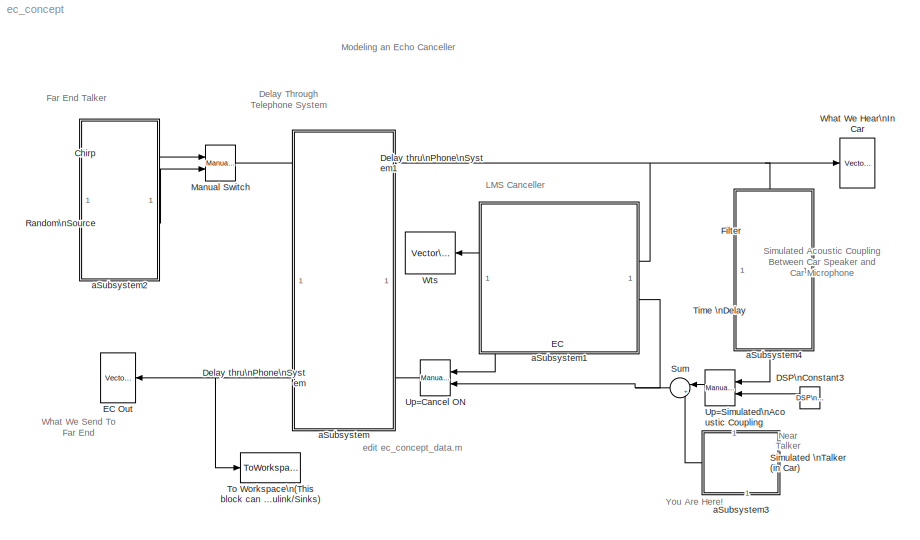
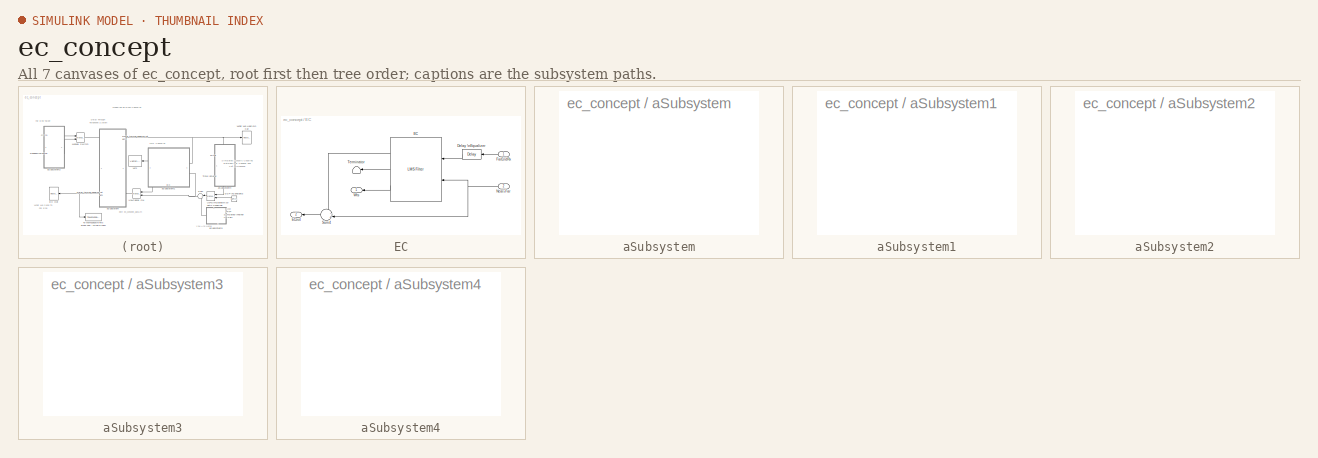
[diagram: thumbnail index - all 7 canvases of the model, root first then tree order]
MODEL ec_concept
KIND model
CONFIG PreLoadFcn = ec_data_concept;
CONFIG StartFcn = tic;
CONFIG StopFcn = toc;
BLOCK [Reference] Chirp  REF=dspsrcs4/Chirp
  Ports = [0, 1]
  SID = 1
  SourceBlock = dspsrcs4/Chirp
  SourceProductBaseCode = DS
  SourceProductName = DSP System Toolbox
  SourceType = Chirp
  Ts = 1/Fs
  Tsweep = pic_frame_size/Fs
  datatype = Single
  f0 = 100
  f1 = 4000
  mode = Unidirectional
  phase = 0
  spf = pic_frame_size
  sweep = Linear
  t1 = pic_frame_size/Fs
BLOCK [Reference] DSP\nConstant3  REF=dspsrcs4/DSP\nConstant
  FramebasedOutput = off
  FunctionWithSeparateData = off
  InterpretAs1D = off
  Ports = [0, 1]
  RTWMemSecDataConstants = Inherit from model
  RTWMemSecDataInternal = Inherit from model
  RTWMemSecDataParameters = Inherit from model
  RTWMemSecFuncExecute = Inherit from model
  RTWMemSecFuncInitTerm = Inherit from model
  SID = 2
  SampleMode = Discrete
  ShowPortLabels = FromPortIcon
  SourceBlock = dspsrcs4/DSP\nConstant
  SourceProductBaseCode = DS
  SourceProductName = DSP System Toolbox
  SourceType = DSP Constant
  SystemSampleTime = -1
  Ts = pic_frame_size/Fs
  Value = 0
  additionalParams = off
  allowOverrides = on
  continuousOutput = Sample-based
  dataType = single
  discreteOutput = Sample-based
  fracBitsMode = Best precision
  framePeriod = pic_frame_size/Fs
  isSigned = on
  numFracBits = 15
  sampTime = pic_frame_size/Fs
  udDataType = sfix(16)
  wordLen = 16
BLOCK [Reference] Delay thru\nPhone\nSystem  REF=dspsigops/Delay
  Ports = [1, 1]
  SID = 3
  SourceBlock = dspsigops/Delay
  SourceProductBaseCode = DS
  SourceProductName = DSP System Toolbox
  SourceType = Delay
  delay = 100
  dif_ic_for_ch = off
  dif_ic_for_dly = off
  dly_unit = Samples
  ic = 0
  ic_detail = off
  reset_popup = None
BLOCK [Reference] Delay thru\nPhone\nSystem1  REF=dspsigops/Delay
  Ports = [1, 1]
  SID = 4
  SourceBlock = dspsigops/Delay
  SourceProductBaseCode = DS
  SourceProductName = DSP System Toolbox
  SourceType = Delay
  delay = 100
  dif_ic_for_ch = off
  dif_ic_for_dly = off
  dly_unit = Samples
  ic = 0
  ic_detail = off
  reset_popup = None
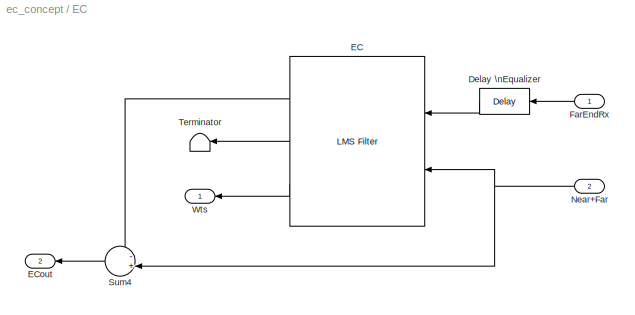
BLOCK [SubSystem] EC
  Ports = [2, 2]
  RequestExecContextInheritance = off
  SID = 5
BLOCK [Reference] EC Out  REF=dspsnks4/Vector\nScope
  AxisGrid = on
  AxisLegend = off
  AxisProperties = off
  AxisZoom = off
  DisplayProperties = off
  Domain = Time
  FigPos = [27 415 306 206]
  FrameNumber = on
  HorizSpan = 4
  InheritXIncr = on
  LineProperties = off
  Memory = off
  OpenScopeAtSimStart = on
  OpenScopeImmediately = off
  Ports = [1]
  SID = 14
  ScopeProperties = on
  ShowPortLabels = off
  SourceBlock = dspsnks4/Vector\nScope
  SourceProductBaseCode = DS
  SourceProductName = DSP System Toolbox
  SourceType = Vector Scope
  XIncr = 1
  XLabel = Time
  XLimit = Auto
  XMax = 1
  XMin = 0
  XRange = [0...Fs/2]
  XStart = 0
  XUnits = Hertz
  YLabel = Amplitude
  YMax = 0.550434925854206
  YMin = -0.526783668994904
  YUnits = dB
BLOCK [Reference] EC/Delay \nEqualizer  REF=dspsigops/Delay
  Ports = [1, 1]
  SID = 8
  SourceBlock = dspsigops/Delay
  SourceProductBaseCode = DS
  SourceProductName = DSP System Toolbox
  SourceType = Delay
  delay = spkr_to_mic_delay +sm_length/2 - 32/2
  dif_ic_for_ch = off
  dif_ic_for_dly = off
  dly_unit = Samples
  ic = 0
  ic_detail = off
  reset_popup = None
BLOCK [Reference] EC/EC  REF=dspadpt3/LMS Filter
  Adapt = off
  Algo = LMS
  L = 32
  LockScale = off
  Ports = [2, 3]
  SID = 9
  ShowPortLabels = off
  SourceBlock = dspadpt3/LMS Filter
  SourceProductBaseCode = DS
  SourceProductName = DSP System Toolbox
  SourceType = LMS Filter
  accum2FracLength = 30
  accum2Mode = User-defined
  accumFracLength = 20
  accumMode = Same as first input
  accumWordLength = 32
  addnparflag = off
  firstCoeffFracLength = 15
  firstCoeffMode = Same word length as first input
  firstCoeffWordLength = 16
  ic = 0
  leakage = 1
  memoryFracLength = 15
  memoryMode = Same as first input
  memoryWordLength = 16
  mu = 10/32768
  overflowMode = off
  prodOutput2FracLength = 15
  prodOutput2Mode = User-defined
  prodOutput3FracLength = 15
  prodOutput3Mode = User-defined
  prodOutput4FracLength = 15
  prodOutput4Mode = User-defined
  prodOutputFracLength = 20
  prodOutputMode = Same as first input
  prodOutputWordLength = 16
  quotientFracLength = 20
  quotientMode = User-defined
  resetflag = None
  roundingMode = Nearest
  secondCoeffFracLength = 14
  secondCoeffMode = User-defined
  secondCoeffWordLength = 2
  stepflag = Dialog
  weights = on
BLOCK [Outport] EC/ECout
  IconDisplay = Port number
  Port = 2
  SID = 13
BLOCK [Inport] EC/FarEndRx
  IconDisplay = Port number
  SID = 6
BLOCK [Inport] EC/Near+Far
  IconDisplay = Port number
  Port = 2
  SID = 7
BLOCK [Sum] EC/Sum4
  IconShape = round
  Inputs = -+|
  Ports = [2, 1]
  SID = 10
BLOCK [Terminator] EC/Terminator
  SID = 11
BLOCK [Outport] EC/Wts
  IconDisplay = Port number
  SID = 12
BLOCK [Reference] Filter  REF=dsparch4/Digital Filter
  AllPoleFiltStruct = Direct form
  BiQuadCoeffs = [1 0.3 0.4 1 0.1 0.2]
  CoeffSource = Specify via dialog
  DenCoeffs = [1 0.1]
  FIRFiltStruct = Direct form
  FiltPerSampPopup = One filter per frame
  FilterSource = Specify via dialog
  IC = 0
  ICden = 0
  ICnum = 0
  IIRFiltStruct = Direct form II transposed
  LatticeCoeffs = [0.2 0.4]
  LockScale = off
  NumCoeffs = spkr_to_mic_filter
  Ports = [1, 1]
  SID = 15
  ScaleValues = 1
  SourceBlock = dsparch4/Digital Filter
  SourceProductBaseCode = DS
  SourceProductName = DSP System Toolbox
  SourceType = Digital Filter
  Tag = BlockMethodSubSystem
  TypePopup = FIR (all zeros)
  accumFracLength = 30
  accumMode = Same as product output
  accumWordLength = 32
  additionalParams = off
  allowOverrides = on
  denIgnore = on
  dfiltObjectName = dfilt.dffir([1 2 1])
  firstCoeffFracLength = 15
  firstCoeffMode = Same word length as input
  firstCoeffWordLength = 16
  memoryFracLength = 15
  memoryMode = Same as accumulator
  memoryWordLength = 16
  multiplicandFracLength = 30
  multiplicandMode = Same as output
  multiplicandWordLength = 32
  outputFracLength = 15
  outputMode = Same as accumulator
  outputWordLength = 16
  overflowMode = off
  prodOutputFracLength = 30
  prodOutputMode = Same as input
  prodOutputWordLength = 32
  roundingMode = Floor
  scaleValueFracLength = 14
  secondCoeffFracLength = 15
  secondCoeffMode = Same as numerator
  secondCoeffWordLength = 16
  showAcc = off
  showCoeff = off
  showMem = off
  showMpy = off
  showOut = off
  stageIOMode = Same as input
  stageIOWordLength = 16
  stageInFracLength = 15
  stageOutFracLength = 15
  tapSumFracLength = 30
  tapSumMode = Same as input
  tapSumWordLength = 32
  thirdCoeffFracLength = 15
  thirdCoeffMode = Same as input
  thirdCoeffWordLength = 16
BLOCK [Reference] Manual Switch  REF=simulink/Signal\nRouting/Manual Switch
  FunctionWithSeparateData = off
  Ports = [2, 1]
  RTWMemSecDataConstants = Inherit from model
  RTWMemSecDataInternal = Inherit from model
  RTWMemSecDataParameters = Inherit from model
  RTWMemSecFuncExecute = Inherit from model
  RTWMemSecFuncInitTerm = Inherit from model
  SID = 16
  ShowPortLabels = FromPortIcon
  SourceBlock = simulink/Signal\nRouting/Manual Switch
  SourceProductBaseCode = SL
  SourceProductName = Simulink
  SourceType = Manual Switch
  SystemSampleTime = -1
  action = 0
  sw = 1
  varsize = off
BLOCK [Reference] Random\nSource  REF=dspsrcs4/Random\nSource
  CltLength = 12
  DataType = Single
  IsInherit = off
  MaxVal = 1
  MeanVal = 0
  MinVal = 0
  NormMethod = Ziggurat
  OutComplex = Real
  Ports = [0, 1]
  RepMode = Repeatable
  SID = 17
  SampFrame = pic_frame_size
  SampMode = Discrete
  SampTime = 1/Fs
  SourceBlock = dspsrcs4/Random\nSource
  SourceProductBaseCode = DS
  SourceProductName = DSP System Toolbox
  SourceType = Random Source
  SrcType = Gaussian
  UserData = DataTag0
  UserDataPersistent = on
  VarVal = 1
  rawSeed = 1
BLOCK [Reference] Simulated \nTalker (in Car)  REF=dspsrcs4/Sine Wave
  Amplitude = 0.2
  CompMethod = Trigonometric fcn
  Frequency = 102
  OutComplex = Real
  Phase = 0
  Ports = [0, 1]
  ResetState = Restart at time zero
  SID = 18
  SampleMode = Discrete
  SampleTime = 1/Fs
  SamplesPerFrame = pic_frame_size
  SourceBlock = dspsrcs4/Sine Wave
  SourceProductBaseCode = DS
  SourceProductName = DSP System Toolbox
  SourceType = Sine Wave
  TableSize = Speed
  additionalParams = off
  allowOverrides = on
  dataType = single
  fracBitsMode = Best precision
  numFracBits = 15
  udDataType = sfix(16)
  wordLen = 16
BLOCK [Sum] Sum
  IconShape = round
  InputSameDT = off
  Inputs = |++
  OutDataTypeStr = Inherit: Inherit via internal rule
  Ports = [2, 1]
  SID = 19
  SaturateOnIntegerOverflow = off
BLOCK [Reference] Time \nDelay  REF=dspsigops/Delay
  Ports = [1, 1]
  SID = 20
  SourceBlock = dspsigops/Delay
  SourceProductBaseCode = DS
  SourceProductName = DSP System Toolbox
  SourceType = Delay
  delay = 10
  dif_ic_for_ch = off
  dif_ic_for_dly = off
  dly_unit = Samples
  ic = 0
  ic_detail = off
  reset_popup = None
BLOCK [ToWorkspace] To Workspace\n(This block can be found under Simulink//Sinks)
  MaxDataPoints = inf
  Ports = [1]
  SID = 21
  SampleTime = -1
  SaveFormat = Structure
  VariableName = simout
BLOCK [Reference] Up=Cancel ON  REF=simulink/Signal\nRouting/Manual Switch
  FunctionWithSeparateData = off
  Ports = [2, 1]
  RTWMemSecDataConstants = Inherit from model
  RTWMemSecDataInternal = Inherit from model
  RTWMemSecDataParameters = Inherit from model
  RTWMemSecFuncExecute = Inherit from model
  RTWMemSecFuncInitTerm = Inherit from model
  SID = 22
  ShowPortLabels = FromPortIcon
  SourceBlock = simulink/Signal\nRouting/Manual Switch
  SourceProductBaseCode = SL
  SourceProductName = Simulink
  SourceType = Manual Switch
  SystemSampleTime = -1
  action = 0
  sw = 1
  varsize = off
BLOCK [Reference] Up=Simulated\nAcoustic Coupling  REF=simulink/Signal\nRouting/Manual Switch
  FunctionWithSeparateData = off
  Ports = [2, 1]
  RTWMemSecDataConstants = Inherit from model
  RTWMemSecDataInternal = Inherit from model
  RTWMemSecDataParameters = Inherit from model
  RTWMemSecFuncExecute = Inherit from model
  RTWMemSecFuncInitTerm = Inherit from model
  SID = 23
  ShowPortLabels = FromPortIcon
  SourceBlock = simulink/Signal\nRouting/Manual Switch
  SourceProductBaseCode = SL
  SourceProductName = Simulink
  SourceType = Manual Switch
  SystemSampleTime = -1
  action = 0
  sw = 1
  varsize = off
BLOCK [Reference] What We Hear\nIn Car  REF=dspsnks4/Vector\nScope
  AxisGrid = on
  AxisLegend = off
  AxisProperties = off
  AxisZoom = off
  DisplayProperties = off
  Domain = Time
  FigPos = [77 319 306 206]
  FrameNumber = on
  HorizSpan = 1
  InheritXIncr = on
  LineProperties = off
  Memory = off
  OpenScopeAtSimStart = off
  OpenScopeImmediately = off
  Ports = [1]
  SID = 24
  ScopeProperties = on
  ShowPortLabels = off
  SourceBlock = dspsnks4/Vector\nScope
  SourceProductBaseCode = DS
  SourceProductName = DSP System Toolbox
  SourceType = Vector Scope
  XIncr = 1
  XLabel = Time
  XLimit = Auto
  XMax = 1
  XMin = 0
  XRange = [0...Fs/2]
  XStart = 0
  XUnits = Hertz
  YLabel = Amplitude
  YMax = 0.550434925854206
  YMin = -0.526783668994904
  YUnits = dB
BLOCK [Reference] Wts  REF=dspsnks4/Vector\nScope
  AxisGrid = on
  AxisLegend = off
  AxisProperties = off
  AxisZoom = off
  DisplayProperties = off
  Domain = Time
  FigPos = [342 415 306 206]
  FrameNumber = on
  HorizSpan = 1
  InheritXIncr = on
  LineProperties = off
  Memory = off
  OpenScopeAtSimStart = on
  OpenScopeImmediately = off
  Ports = [1]
  SID = 25
  ScopeProperties = on
  ShowPortLabels = off
  SourceBlock = dspsnks4/Vector\nScope
  SourceProductBaseCode = DS
  SourceProductName = DSP System Toolbox
  SourceType = Vector Scope
  XIncr = 1
  XLabel = Time
  XLimit = Auto
  XMax = 1
  XMin = 0
  XRange = [0...Fs/2]
  XStart = 0
  XUnits = Hertz
  YLabel = Amplitude
  YMax = 0.550434925854206
  YMin = -0.526783668994904
  YUnits = dB
BLOCK [SubSystem] aSubsystem
  Ports = []
  RequestExecContextInheritance = off
  SID = 26
BLOCK [SubSystem] aSubsystem1
  Ports = []
  RequestExecContextInheritance = off
  SID = 27
BLOCK [SubSystem] aSubsystem2
  Ports = []
  RequestExecContextInheritance = off
  SID = 28
BLOCK [SubSystem] aSubsystem3
  Ports = []
  RequestExecContextInheritance = off
  SID = 29
BLOCK [SubSystem] aSubsystem4
  Ports = []
  RequestExecContextInheritance = off
  SID = 30
ANNOTATION (root): Delay Through \nTelephone System
ANNOTATION (root): Far End Talker
ANNOTATION (root): LMS Canceller
ANNOTATION (root): Modeling an Echo Canceller
ANNOTATION (root): Near\nEnd\nTalker
ANNOTATION (root): Simulated Acoustic Coupling\nBetween Car Speaker and\nCar Microphone
ANNOTATION (root): What We Send To \nFar End
ANNOTATION (root): You Are Here!
ANNOTATION (root): edit ec_concept_data.m
LINE Chirp:1 -> Manual Switch:1
LINE DSP\nConstant3:1 -> Up=Simulated\nAcoustic Coupling:2
NET Delay thru\nPhone\nSystem1:1 -> EC:1, Filter:1, What We Hear\nIn Car:1
NET Delay thru\nPhone\nSystem:1 -> EC Out:1, To Workspace\n(This block can be found under Simulink//Sinks):1
LINE EC/Delay \nEqualizer:1 -> EC/EC:1
LINE EC/EC:1 -> EC/Sum4:1
LINE EC/EC:2 -> EC/Terminator:1
LINE EC/EC:3 -> EC/Wts:1
LINE EC/FarEndRx:1 -> EC/Delay \nEqualizer:1
NET EC/Near+Far:1 -> EC/EC:2, EC/Sum4:2
LINE EC/Sum4:1 -> EC/ECout:1
LINE EC:1 -> Wts:1
LINE EC:2 -> Up=Cancel ON:1
LINE Filter:1 -> Time \nDelay:1
LINE Manual Switch:1 -> Delay thru\nPhone\nSystem1:1
LINE Random\nSource:1 -> Manual Switch:2
LINE Simulated \nTalker (in Car):1 -> Sum:2
NET Sum:1 -> EC:2, Up=Cancel ON:2
LINE Time \nDelay:1 -> Up=Simulated\nAcoustic Coupling:1
LINE Up=Cancel ON:1 -> Delay thru\nPhone\nSystem:1
LINE Up=Simulated\nAcoustic Coupling:1 -> Sum:1
note: NET lines group one-source signal fan-out (src -> all destinations, sorted); 1:1 wires keep LINE
